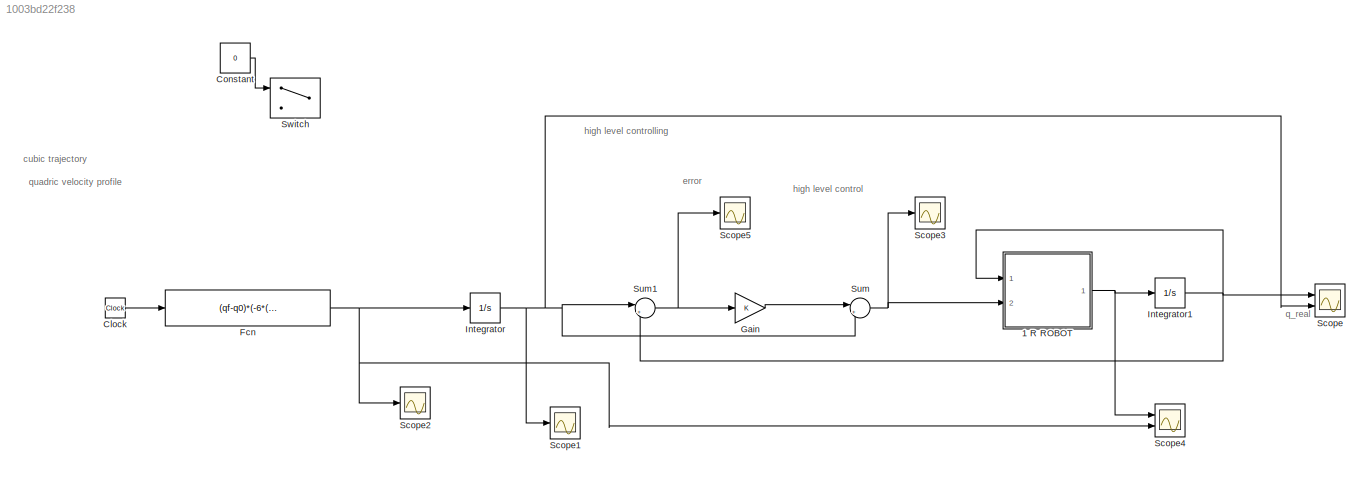
MODEL slx_1003bd22f238
KIND model
CONFIG AbsTol = auto
CONFIG EnableMultiTasking = off
CONFIG FixedStep = auto
CONFIG MaxStep = auto
CONFIG MinStep = auto
CONFIG RelTol = 1e-3
CONFIG SampleTimeConstraint = Unconstrained
CONFIG Solver = VariableStepAuto
CONFIG SolverName = VariableStepAuto
CONFIG StartTime = 0.0
CONFIG StopTime = 1
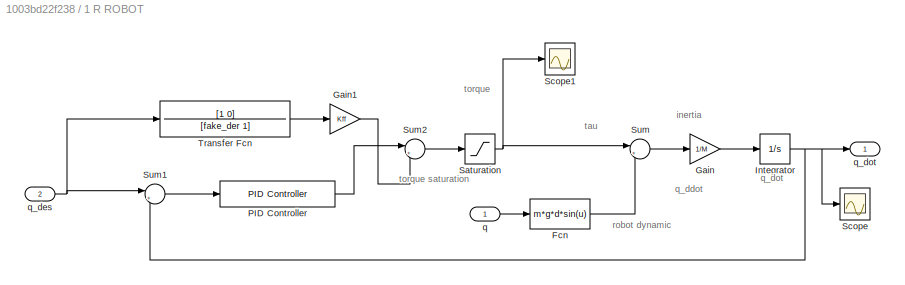
BLOCK [SubSystem] 1 R ROBOT
  Ports = [2, 1]
  RequestExecContextInheritance = off
BLOCK [Fcn] 1 R ROBOT/Fcn
  Expr = m*g*d*sin(u)
BLOCK [Gain] 1 R ROBOT/Gain
  Gain = 1/M
  OutDataTypeStr = Inherit: Inherit via internal rule
  ParamDataTypeStr = Inherit: Inherit via internal rule
  SaturateOnIntegerOverflow = off
BLOCK [Gain] 1 R ROBOT/Gain1
  Gain = Kff
  OutDataTypeStr = Inherit: Inherit via internal rule
  ParamDataTypeStr = Inherit: Inherit via internal rule
  SaturateOnIntegerOverflow = off
BLOCK [Integrator] 1 R ROBOT/Integrator
  InitialCondition = tau0
  Ports = [1, 1]
BLOCK [Reference] 1 R ROBOT/PID Controller  REF=simulink/Continuous/PID Controller
  Ports = [1, 1]
  SourceBlock = simulink/Continuous/PID Controller
  SourceProductBaseCode = SL
  SourceProductName = Simulink
  SourceType = PID 1dof
BLOCK [Saturate] 1 R ROBOT/Saturation
  InputPortMap = u0
  LowerLimit = -tau_max
  Ports = [1, 1]
  UpperLimit = tau_max
BLOCK [Scope] 1 R ROBOT/Scope
  Floating = off
  NumInputPorts = 1
  Ports = [1]
  ScopeSpecificationString = Simulink.scopes.TimeScopeBlockCfg('CurrentConfiguration', extmgr.ConfigurationSet(extmgr.Configuration('Core','General UI',true),extmgr.Configuration('Core','Source UI',true),extmgr.Configuration('Sources','WiredSimulink',true),extmgr.Configuration('Visuals','Time Domain',true,'SerializedDisplays',{struct('MinYLimReal','-0.29801','MaxYLimReal','2.68213','YLabelReal','','MinYLimMag','0.00000','MaxY...<+1330ch>
BLOCK [Scope] 1 R ROBOT/Scope1
  Floating = off
  NumInputPorts = 1
  Ports = [1]
  ScopeSpecificationString = Simulink.scopes.TimeScopeBlockCfg('CurrentConfiguration', extmgr.ConfigurationSet(extmgr.Configuration('Core','General UI',true),extmgr.Configuration('Core','Source UI',true),extmgr.Configuration('Sources','WiredSimulink',true,'DataLoggingVariableName','ScopeData1'),extmgr.Configuration('Visuals','Time Domain',true,'SerializedDisplays',{struct('MinYLimReal','-1.85566','MaxYLimReal','16.70093','YLa...<+1373ch>
BLOCK [Sum] 1 R ROBOT/Sum
  IconShape = round
  InputSameDT = off
  Inputs = |+-
  OutDataTypeStr = Inherit: Inherit via internal rule
  Ports = [2, 1]
  SaturateOnIntegerOverflow = off
BLOCK [Sum] 1 R ROBOT/Sum1
  IconShape = round
  InputSameDT = off
  Inputs = |+-
  OutDataTypeStr = Inherit: Inherit via internal rule
  Ports = [2, 1]
  SaturateOnIntegerOverflow = off
BLOCK [Sum] 1 R ROBOT/Sum2
  IconShape = round
  InputSameDT = off
  Inputs = |++
  OutDataTypeStr = Inherit: Inherit via internal rule
  Ports = [2, 1]
  SaturateOnIntegerOverflow = off
BLOCK [TransferFcn] 1 R ROBOT/Transfer Fcn
  Denominator = [fake_der 1]
  Numerator = [1 0]
BLOCK [Inport] 1 R ROBOT/q
  IconDisplay = Signal name
BLOCK [Inport] 1 R ROBOT/q_des
  IconDisplay = Signal name
  Port = 2
BLOCK [Outport] 1 R ROBOT/q_dot
  IconDisplay = Port number
BLOCK [Clock] Clock
  Decimation = 1
BLOCK [Constant] Constant
  Commented = on
  Value = 0
BLOCK [Fcn] Fcn
  Expr = (qf-q0)*(-6*(u)^2+6*u)
BLOCK [Gain] Gain
  Gain = K
  OutDataTypeStr = Inherit: Inherit via internal rule
  ParamDataTypeStr = Inherit: Inherit via internal rule
  SaturateOnIntegerOverflow = off
BLOCK [Integrator] Integrator
  InitialCondition = q0
  Ports = [1, 1]
BLOCK [Integrator] Integrator1
  InitialCondition = q0
  Ports = [1, 1]
BLOCK [Scope] Scope
  Floating = off
  NumInputPorts = 2
  Ports = [2]
  ScopeSpecificationString = Simulink.scopes.TimeScopeBlockCfg('CurrentConfiguration', extmgr.ConfigurationSet(extmgr.Configuration('Core','General UI',true),extmgr.Configuration('Core','Source UI',true),extmgr.Configuration('Sources','WiredSimulink',true),extmgr.Configuration('Visuals','Time Domain',true,'SerializedDisplays',{struct('MinYLimReal','-0.1988','MaxYLimReal','1.78924','YLabelReal','','MinYLimMag','0.00000','MaxYL...<+1342ch>
BLOCK [Scope] Scope1
  Floating = off
  NumInputPorts = 1
  Ports = [1]
  ScopeSpecificationString = Simulink.scopes.TimeScopeBlockCfg('CurrentConfiguration', extmgr.ConfigurationSet(extmgr.Configuration('Core','General UI',true),extmgr.Configuration('Core','Source UI',true),extmgr.Configuration('Sources','WiredSimulink',true,'DataLoggingVariableName','ScopeData1'),extmgr.Configuration('Visuals','Time Domain',true,'SerializedDisplays',{struct('MinYLimReal','-0.19635','MaxYLimReal','1.76715','YLab...<+1369ch>
BLOCK [Scope] Scope2
  Floating = off
  NumInputPorts = 1
  Ports = [1]
  ScopeSpecificationString = Simulink.scopes.TimeScopeBlockCfg('CurrentConfiguration', extmgr.ConfigurationSet(extmgr.Configuration('Core','General UI',true),extmgr.Configuration('Core','Source UI',true),extmgr.Configuration('Sources','WiredSimulink',true,'DataLoggingVariableName','ScopeData2'),extmgr.Configuration('Visuals','Time Domain',true,'SerializedDisplays',{struct('MinYLimReal','-0.29452','MaxYLimReal','2.65071','YLab...<+1362ch>
BLOCK [Scope] Scope3
  Floating = off
  NumInputPorts = 1
  Ports = [1]
  ScopeSpecificationString = Simulink.scopes.TimeScopeBlockCfg('CurrentConfiguration', extmgr.ConfigurationSet(extmgr.Configuration('Core','General UI',true),extmgr.Configuration('Core','Source UI',true),extmgr.Configuration('Sources','WiredSimulink',true,'DataLoggingVariableName','ScopeData3'),extmgr.Configuration('Visuals','Time Domain',true,'SerializedDisplays',{struct('MinYLimReal','-0.24965','MaxYLimReal','2.24682','YLab...<+1362ch>
BLOCK [Scope] Scope4
  Floating = off
  NumInputPorts = 2
  Ports = [2]
  ScopeSpecificationString = Simulink.scopes.TimeScopeBlockCfg('CurrentConfiguration', extmgr.ConfigurationSet(extmgr.Configuration('Core','General UI',true),extmgr.Configuration('Core','Source UI',true),extmgr.Configuration('Sources','WiredSimulink',true,'DataLoggingVariableName','ScopeData1'),extmgr.Configuration('Visuals','Time Domain',true,'SerializedDisplays',{struct('MinYLimReal','-0.29801','MaxYLimReal','2.68213','YLab...<+1374ch>
BLOCK [Scope] Scope5
  Floating = off
  NumInputPorts = 1
  Ports = [1]
  ScopeSpecificationString = Simulink.scopes.TimeScopeBlockCfg('CurrentConfiguration', extmgr.ConfigurationSet(extmgr.Configuration('Core','General UI',true),extmgr.Configuration('Core','Source UI',true),extmgr.Configuration('Sources','WiredSimulink',true,'DataLoggingVariableName','ScopeData2'),extmgr.Configuration('Visuals','Time Domain',true,'SerializedDisplays',{struct('MinYLimReal','-0.02518','MaxYLimReal','0.03024','YLab...<+1363ch>
BLOCK [Sum] Sum
  IconShape = round
  InputSameDT = off
  Inputs = |++
  OutDataTypeStr = Inherit: Inherit via internal rule
  Ports = [2, 1]
  SaturateOnIntegerOverflow = off
BLOCK [Sum] Sum1
  IconShape = round
  InputSameDT = off
  Inputs = |+-
  OutDataTypeStr = Inherit: Inherit via internal rule
  Ports = [2, 1]
  SaturateOnIntegerOverflow = off
BLOCK [Switch] Switch
  Commented = on
  InputSameDT = off
  SaturateOnIntegerOverflow = off
  Threshold = 1
ANNOTATION (root): cubic trajectory
ANNOTATION (root): error
ANNOTATION (root): high level control
ANNOTATION (root): high level controlling
ANNOTATION (root): q_real
ANNOTATION (root): quadric velocity profile
ANNOTATION 1 R ROBOT: inertia
ANNOTATION 1 R ROBOT: q_ddot
ANNOTATION 1 R ROBOT: q_dot
ANNOTATION 1 R ROBOT: robot dynamic
ANNOTATION 1 R ROBOT: tau
ANNOTATION 1 R ROBOT: torque
ANNOTATION 1 R ROBOT: torque saturation
LINE 1 R ROBOT/Fcn:1 -> 1 R ROBOT/Sum:2
LINE 1 R ROBOT/Gain1:1 -> 1 R ROBOT/Sum2:2
LINE 1 R ROBOT/Gain:1 -> 1 R ROBOT/Integrator:1
NET 1 R ROBOT/Integrator:1 -> 1 R ROBOT/Scope:1, 1 R ROBOT/Sum1:2, 1 R ROBOT/q_dot:1
LINE 1 R ROBOT/PID Controller:1 -> 1 R ROBOT/Sum2:1
NET 1 R ROBOT/Saturation:1 -> 1 R ROBOT/Scope1:1, 1 R ROBOT/Sum:1
LINE 1 R ROBOT/Sum1:1 -> 1 R ROBOT/PID Controller:1
LINE 1 R ROBOT/Sum2:1 -> 1 R ROBOT/Saturation:1
LINE 1 R ROBOT/Sum:1 -> 1 R ROBOT/Gain:1
LINE 1 R ROBOT/Transfer Fcn:1 -> 1 R ROBOT/Gain1:1
LINE 1 R ROBOT/q:1 -> 1 R ROBOT/Fcn:1
NET 1 R ROBOT/q_des:1 -> 1 R ROBOT/Sum1:1, 1 R ROBOT/Transfer Fcn:1
NET 1 R ROBOT:1 -> Integrator1:1, Scope4:1
LINE Clock:1 -> Fcn:1
LINE Constant:1 -> Switch:1
NET Fcn:1 -> Integrator:1, Scope2:1, Scope4:2
LINE Gain:1 -> Sum:1
NET Integrator1:1 -> 1 R ROBOT:1, Scope:1, Sum1:2
NET Integrator:1 -> Scope1:1, Scope:2, Sum1:1, Sum:2
NET Sum1:1 -> Gain:1, Scope5:1
NET Sum:1 -> 1 R ROBOT:2, Scope3:1
note: NET lines group one-source signal fan-out (src -> all destinations, sorted); 1:1 wires keep LINE
